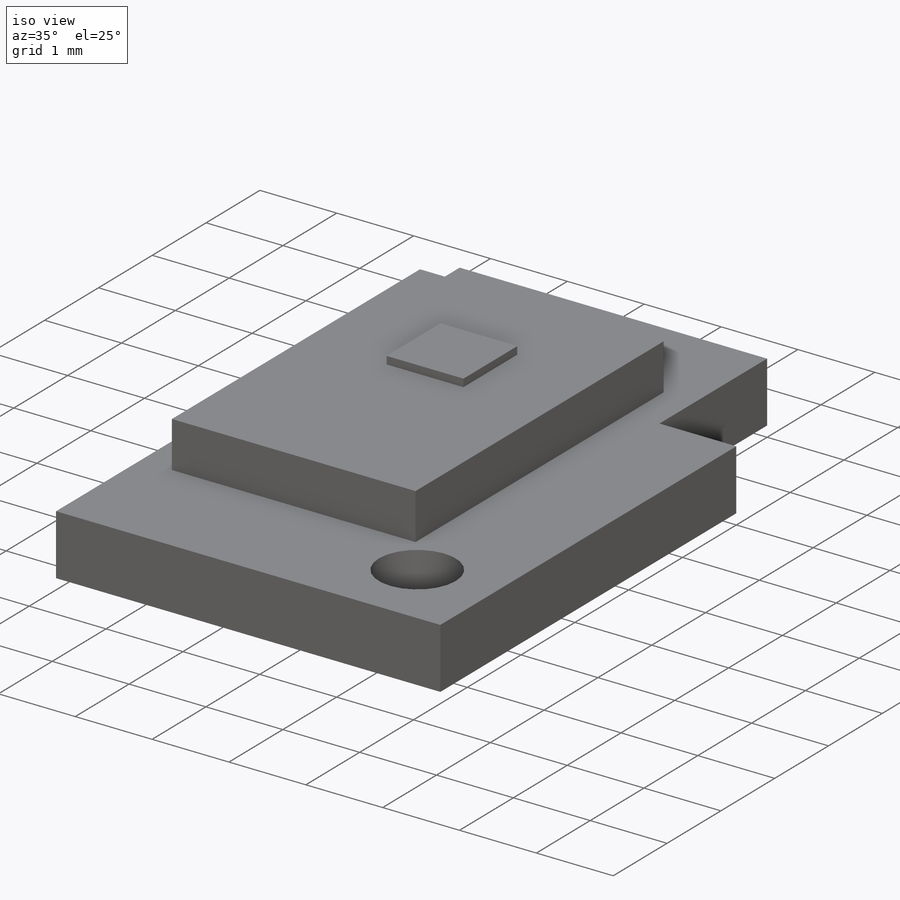
[diagram: iso view]
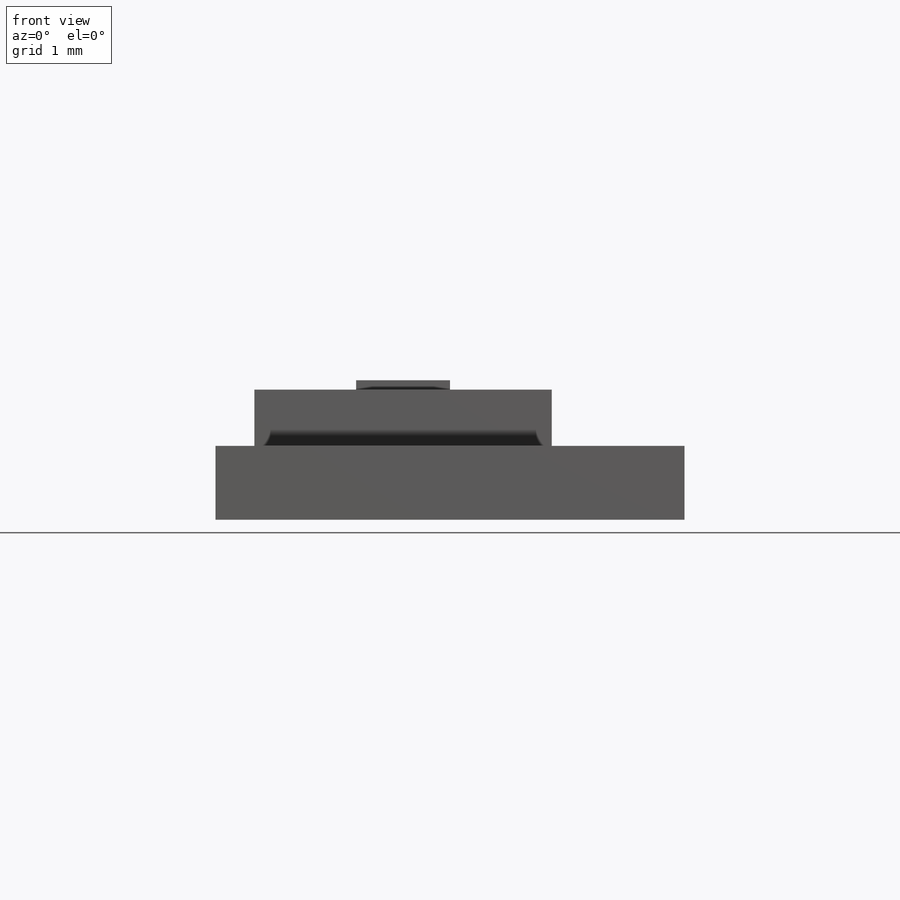
[diagram: front view]
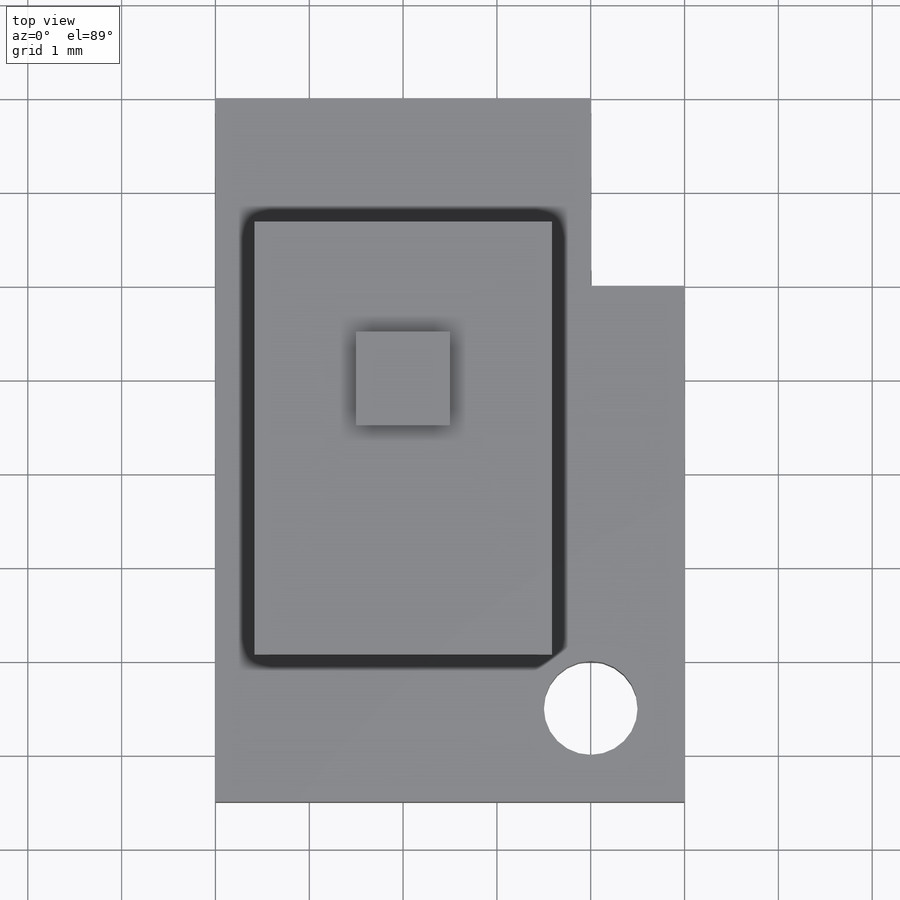
[diagram: top view]
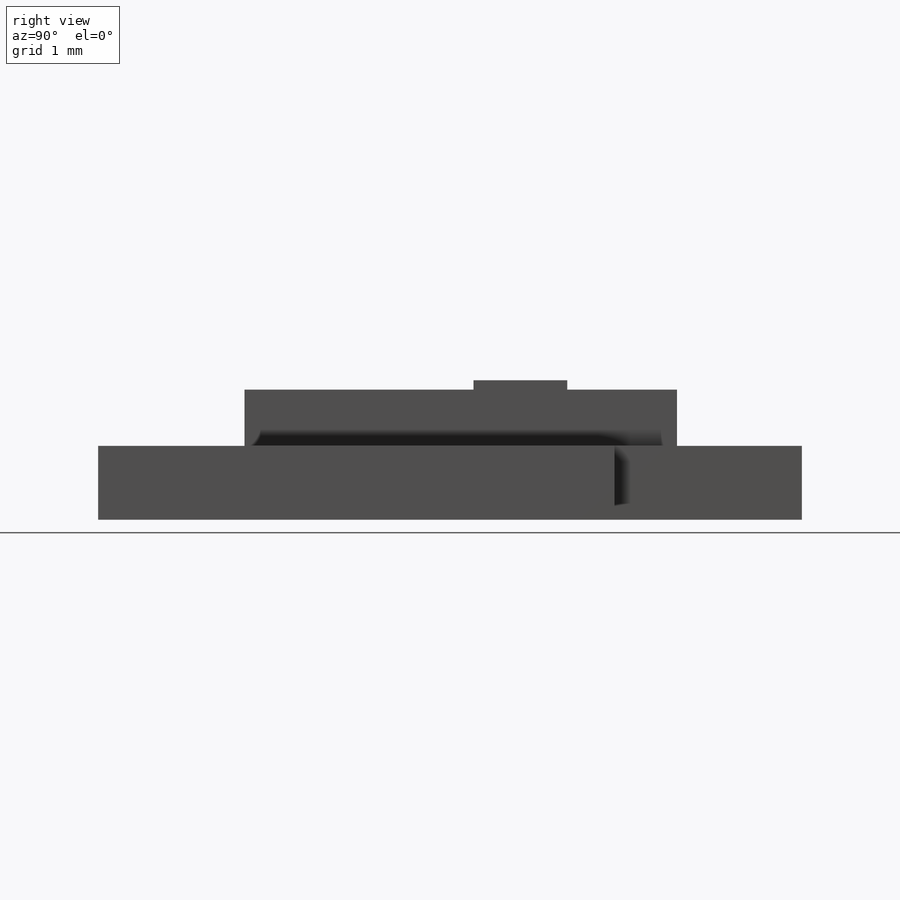
[diagram: right view]
SOLIDWORKS PART (.sldprt)
format: sldprt  version: not decoded by parser v0  size: 187,392 bytes
history: native  units: mm
features: sketch x4, extrude x3, material x1, cut_extrude x1 (+11 scaffold rows collapsed)
feature tree (20):
  scaffold x11  (default folders/planes/origin — collapsed)
  material  "Material <not specified>"
  sketch  "Sketch1"  dims[c1.D1=7.5mm c1.D2=2.0mm c1.D3=3.0mm c1.D4=3.0mm c1.D5=2.0mm c1.D6=1.0mm c2.D5=2.0mm]
  extrude  "Boss-Extrude1"  Depth=0.7874mm
  sketch  "Sketch4"  dims[c1.D3=~2.690719mm c1.D1=4.61mm c1.D2=3.17mm c2.D3=3.11mm c2.D1=3.17mm c2.D2=4.61mm c3.D3=1.33mm c3.D4=2.0mm]
  extrude  "Boss-Extrude3"  Depth=0.6mm
  sketch  "Sketch2"  dims[c1.D2=~2.690719mm c1.D1=~2.690719mm c1.D3=~2.690719mm c2.D1=3.0mm c2.D3=2.0mm c2.D4=1.0mm c2.D5=1.0mm]
  extrude  "Boss-Extrude2"  Depth=0.1mm
  sketch  "Sketch5"  dims[c1.D1=1.0mm c1.D2=1.0mm c1.D3=1.0mm c2.D2=1.0mm c2.D3=1.0mm]
  cut_extrude  "Cut-Extrude1"  [1 undecoded]
decode coverage: 7 of 8 modeling features carry decoded parameters
note: ~ marks probable driven/reference dimensions
note: 1 parameter value undecoded
note: suppression state not decoded; provenance and decode notes live in map.json
